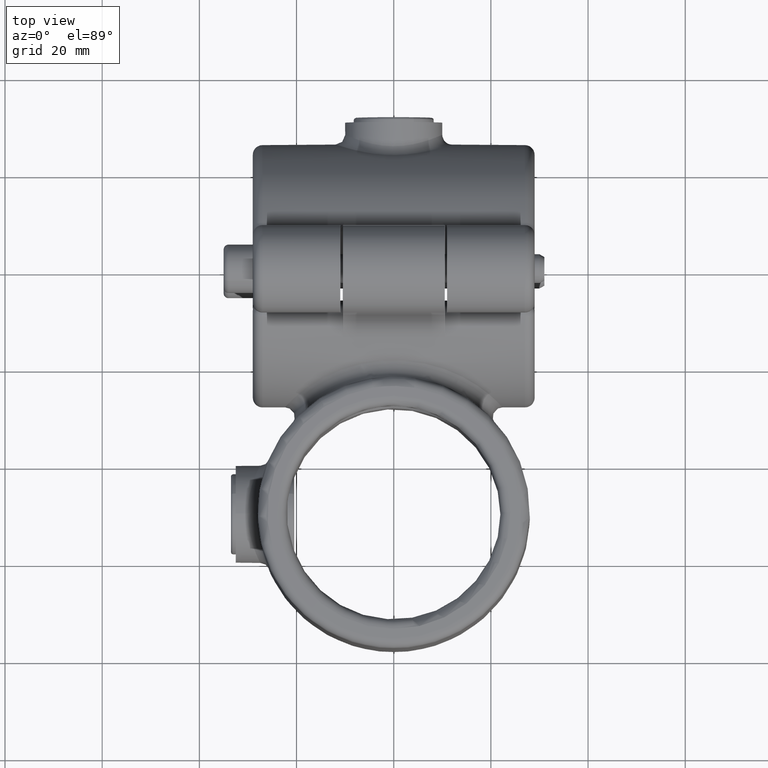
[diagram: clean part render]
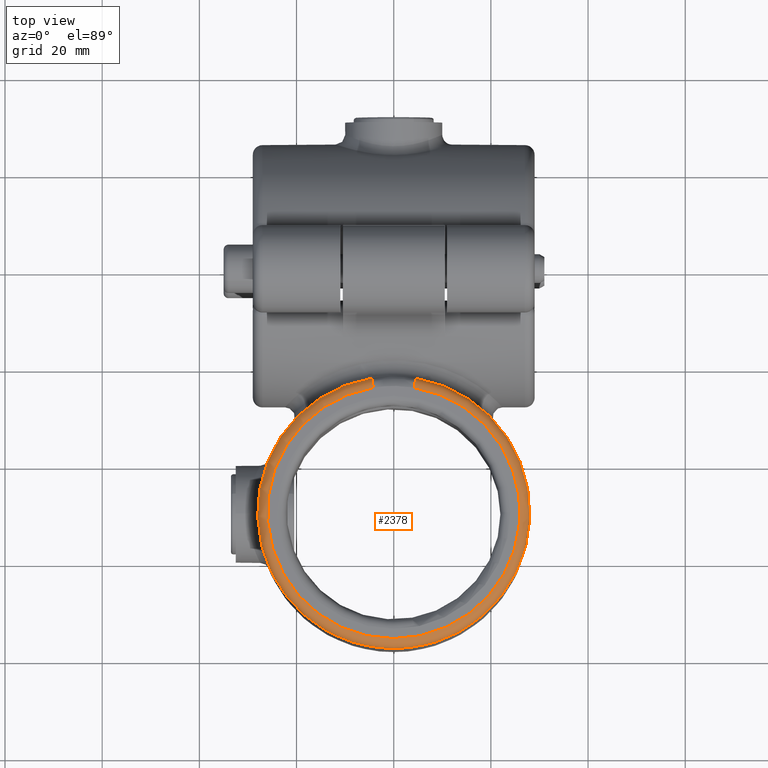
[diagram: same view with one face highlighted and labeled with its STEP entity id]
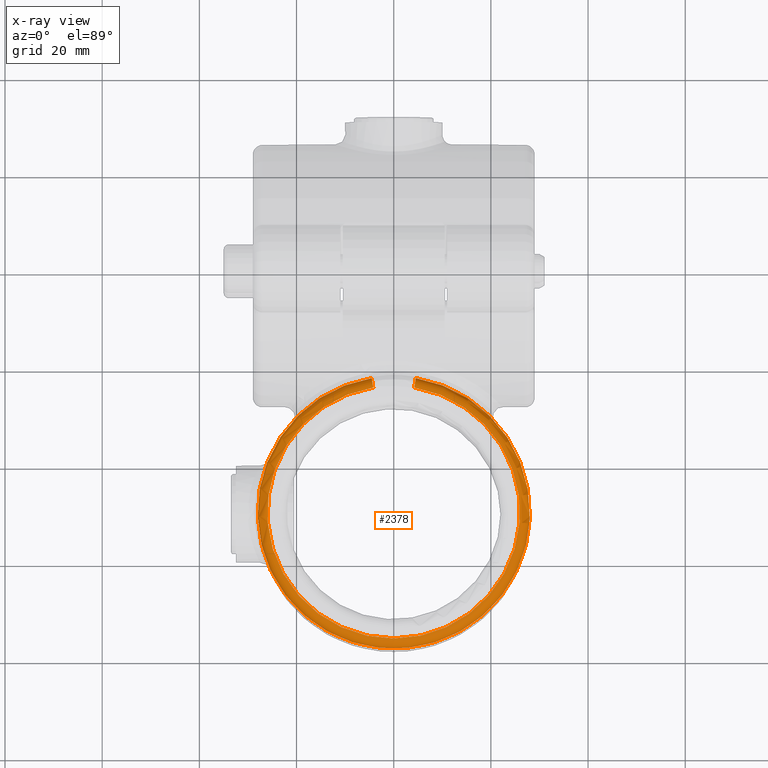
[diagram: x-ray of the same camera — body ghosted, the highlighted face saturated]
A machine part, top view. The second image highlights one B-rep face of the part: STEP entity #2378.
The next image is the same camera in x-ray: the body ghosted, the highlighted face saturated — about 0% of this face is hidden behind the body in this view.
In plain terms, the highlighted toroidal blend (fillet) surface has major radius 26 mm and minor (blend) radius 2 mm.
Its self-contained STEP definition (entity closure, byte-faithful):
#75 = VERTEX_POINT ( 'NONE', #7112 ) ;
#442 = EDGE_CURVE ( 'NONE', #6318, #526, #4401, .T. ) ;
#526 = VERTEX_POINT ( 'NONE', #7534 ) ;
#594 = TOROIDAL_SURFACE ( 'NONE', #3183, 26.00000000000001066, 2.000000000000000000 ) ;
#833 = AXIS2_PLACEMENT_3D ( 'NONE', #7474, #4573, #931 ) ;
#931 = DIRECTION ( 'NONE',  ( -0.1619595472032591965, 0.9867973981875486356, 0.000000000000000000 ) ) ;
#1129 = CIRCLE ( 'NONE', #4240, 28.00000000000000711 ) ;
#1602 = AXIS2_PLACEMENT_3D ( 'NONE', #2652, #3782, #3743 ) ;
#2143 = AXIS2_PLACEMENT_3D ( 'NONE', #3414, #5152, #3960 ) ;
#2328 = CARTESIAN_POINT ( 'NONE',  ( 0.000000000000000000, 9.999999999999980460, 22.00000000000000000 ) ) ;
#2378 = ADVANCED_FACE ( 'NONE', ( #5754 ), #594, .T. ) ;
#2639 = EDGE_CURVE ( 'NONE', #75, #6643, #5554, .T. ) ;
#2652 = CARTESIAN_POINT ( 'NONE',  ( 4.210948227293986434, 35.65673235287474085, 22.00000000000000000 ) ) ;
#2713 = DIRECTION ( 'NONE',  ( 1.000000000000000000, 0.000000000000000000, 0.000000000000000000 ) ) ;
#2738 = CARTESIAN_POINT ( 'NONE',  ( 0.000000000000000000, 9.999999999999980460, 22.00000000000000000 ) ) ;
#3141 = CARTESIAN_POINT ( 'NONE',  ( -4.534867321690930986, 37.63032714925139999, 21.99999999999781863 ) ) ;
#3183 = AXIS2_PLACEMENT_3D ( 'NONE', #2738, #5095, #2713 ) ;
#3414 = CARTESIAN_POINT ( 'NONE',  ( 0.000000000000000000, 9.999999999999980460, 24.00000000000000000 ) ) ;
#3743 = DIRECTION ( 'NONE',  ( -0.1619595472036148842, -0.9867973981874901268, 0.000000000000000000 ) ) ;
#3782 = DIRECTION ( 'NONE',  ( -0.9867973981874902378, 0.1619595472036150785, 0.000000000000000000 ) ) ;
#3906 = CIRCLE ( 'NONE', #2143, 26.00000000000001066 ) ;
#3960 = DIRECTION ( 'NONE',  ( 1.000000000000000000, 0.000000000000000000, 0.000000000000000000 ) ) ;
#4240 = AXIS2_PLACEMENT_3D ( 'NONE', #2328, #4683, #6272 ) ;
#4401 = CIRCLE ( 'NONE', #833, 2.000000000000002665 ) ;
#4537 = ORIENTED_EDGE ( 'NONE', *, *, #5965, .F. ) ;
#4573 = DIRECTION ( 'NONE',  ( 0.9867973981875485245, 0.1619595472032596128, -5.619100573841360379E-16 ) ) ;
#4593 = CARTESIAN_POINT ( 'NONE',  ( 4.534867321700619236, 37.63032714924981548, 21.99999999999624123 ) ) ;
#4683 = DIRECTION ( 'NONE',  ( -0.000000000000000000, -0.000000000000000000, -1.000000000000000000 ) ) ;
#4753 = EDGE_CURVE ( 'NONE', #526, #75, #3906, .T. ) ;
#5056 = ORIENTED_EDGE ( 'NONE', *, *, #2639, .F. ) ;
#5095 = DIRECTION ( 'NONE',  ( 0.000000000000000000, 0.000000000000000000, 1.000000000000000000 ) ) ;
#5152 = DIRECTION ( 'NONE',  ( 0.000000000000000000, 0.000000000000000000, 1.000000000000000000 ) ) ;
#5466 = ORIENTED_EDGE ( 'NONE', *, *, #442, .F. ) ;
#5554 = CIRCLE ( 'NONE', #1602, 2.000000000000001776 ) ;
#5754 = FACE_OUTER_BOUND ( 'NONE', #6017, .T. ) ;
#5965 = EDGE_CURVE ( 'NONE', #6643, #6318, #1129, .T. ) ;
#6017 = EDGE_LOOP ( 'NONE', ( #5466, #4537, #5056, #7523 ) ) ;
#6272 = DIRECTION ( 'NONE',  ( 1.000000000000000000, 0.000000000000000000, 0.000000000000000000 ) ) ;
#6318 = VERTEX_POINT ( 'NONE', #3141 ) ;
#6643 = VERTEX_POINT ( 'NONE', #4593 ) ;
#7112 = CARTESIAN_POINT ( 'NONE',  ( 4.210948227293986434, 35.65673235287474085, 24.00000000000000000 ) ) ;
#7474 = CARTESIAN_POINT ( 'NONE',  ( -4.210948227284757373, 35.65673235287624721, 22.00000000000000000 ) ) ;
#7523 = ORIENTED_EDGE ( 'NONE', *, *, #4753, .F. ) ;
#7534 = CARTESIAN_POINT ( 'NONE',  ( -4.210948227284757373, 35.65673235287625431, 24.00000000000000000 ) ) ;